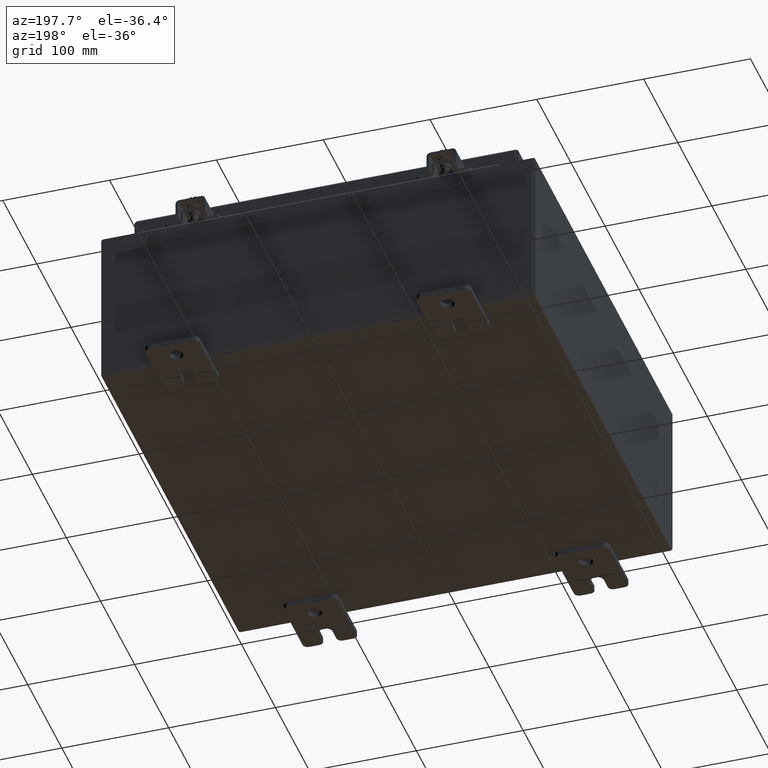
[diagram: clean part render]
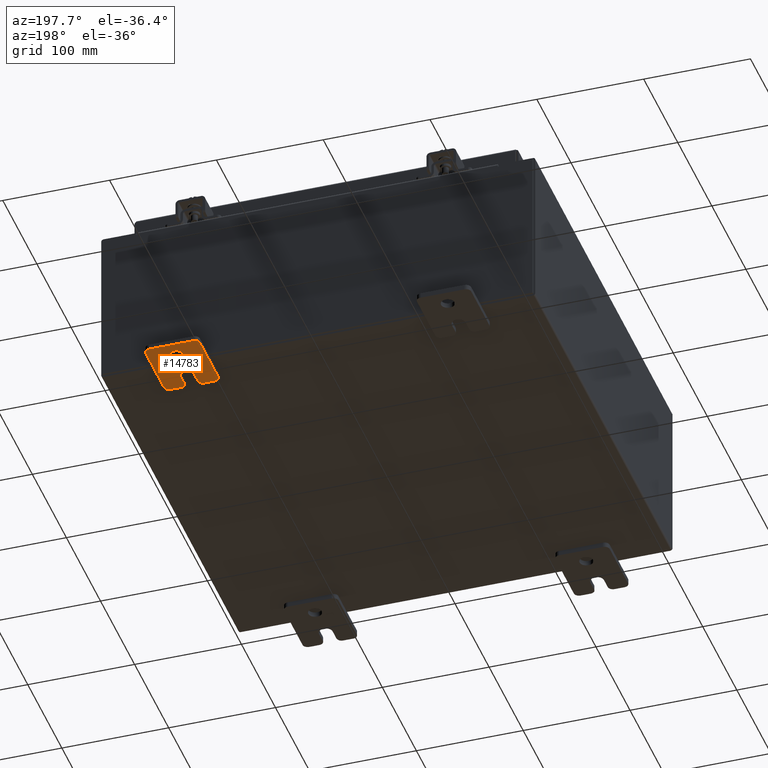
[diagram: same view with one face highlighted and labeled with its STEP entity id]
A machine part, auxiliary view. The second image highlights one B-rep face of the part: STEP entity #14783.
In plain terms, the highlighted planar face has unit normal (0, 0, 1).
Its self-contained STEP definition (entity closure, byte-faithful):
#406 = DIRECTION ( 'NONE',  ( 0.0000000000000000000, -1.639108796198553600E-015, -1.000000000000000000 ) ) ;
#421 = DIRECTION ( 'NONE',  ( 0.0000000000000000000, 7.189073667537492800E-016, -1.000000000000000000 ) ) ;
#816 = CARTESIAN_POINT ( 'NONE',  ( -0.1879999999999997800, 1.059999999999993600, -0.8100000000000089400 ) ) ;
#850 = CIRCLE ( 'NONE', #8610, 0.1900000000000011100 ) ;
#1102 = EDGE_CURVE ( 'NONE', #5170, #25850, #9318, .T. ) ;
#1103 = LINE ( 'NONE', #22632, #21917 ) ;
#1728 = EDGE_CURVE ( 'NONE', #12232, #4147, #6767, .T. ) ;
#1886 = DIRECTION ( 'NONE',  ( 1.000000000000000000, -0.0000000000000000000, -5.163192708025532000E-017 ) ) ;
#2190 = CIRCLE ( 'NONE', #13055, 0.1900000000000011100 ) ;
#2468 = CARTESIAN_POINT ( 'NONE',  ( -0.1879999999999997800, -1.060000000000003400, -0.4400000000000005000 ) ) ;
#2484 = CARTESIAN_POINT ( 'NONE',  ( -0.1879999999999997800, -1.250000000000005300, -0.8100000000000047200 ) ) ;
#2487 = EDGE_CURVE ( 'NONE', #9086, #5569, #17762, .T. ) ;
#2588 = CARTESIAN_POINT ( 'NONE',  ( -0.1879999999999997800, -1.060000000000004100, -0.8100000000000050500 ) ) ;
#2839 = DIRECTION ( 'NONE',  ( 0.0000000000000000000, 0.0000000000000000000, -1.000000000000000000 ) ) ;
#3097 = FACE_OUTER_BOUND ( 'NONE', #3208, .T. ) ;
#3195 = VERTEX_POINT ( 'NONE', #5436 ) ;
#3208 = EDGE_LOOP ( 'NONE', ( #17237, #12263, #5119, #7480, #10904, #20679, #19253, #10378, #22175, #8338, #25718, #19862, #16626, #8719 ) ) ;
#3513 = CARTESIAN_POINT ( 'NONE',  ( -0.1879999999999997800, 0.0000000000000000000, 0.0000000000000000000 ) ) ;
#3651 = CARTESIAN_POINT ( 'NONE',  ( -0.1880000000000010000, 0.6249999999999992200, 0.2499999999999999200 ) ) ;
#3973 = CARTESIAN_POINT ( 'NONE',  ( -0.1880000000000004700, -1.060000000000002100, 0.2500000000000005000 ) ) ;
#4147 = VERTEX_POINT ( 'NONE', #20369 ) ;
#4187 = EDGE_CURVE ( 'NONE', #7131, #10198, #11999, .T. ) ;
#4493 = DIRECTION ( 'NONE',  ( 0.0000000000000000000, 0.0000000000000000000, -1.000000000000000000 ) ) ;
#4586 = DIRECTION ( 'NONE',  ( 6.556435184794182400E-016, 1.000000000000000000, 0.0000000000000000000 ) ) ;
#4616 = DIRECTION ( 'NONE',  ( 0.0000000000000000000, 0.0000000000000000000, -1.000000000000000000 ) ) ;
#5119 = ORIENTED_EDGE ( 'NONE', *, *, #2487, .F. ) ;
#5144 = VECTOR ( 'NONE', #4586, 39.37007874015748100 ) ;
#5170 = VERTEX_POINT ( 'NONE', #26097 ) ;
#5436 = CARTESIAN_POINT ( 'NONE',  ( -0.1879999999999997800, -1.060000000000004500, -1.000000000000006400 ) ) ;
#5449 = DIRECTION ( 'NONE',  ( -1.000000000000000000, -0.0000000000000000000, 0.0000000000000000000 ) ) ;
#5528 = PLANE ( 'NONE',  #22796 ) ;
#5569 = VERTEX_POINT ( 'NONE', #11471 ) ;
#5693 = EDGE_CURVE ( 'NONE', #20489, #19932, #10635, .T. ) ;
#5898 = DIRECTION ( 'NONE',  ( 0.0000000000000000000, 1.000000000000000000, -1.639108796198558100E-015 ) ) ;
#6307 = CARTESIAN_POINT ( 'NONE',  ( -0.1879999999999997800, 1.249999999999994700, -0.8100000000000092700 ) ) ;
#6411 = VECTOR ( 'NONE', #25992, 39.37007874015748100 ) ;
#6767 = CIRCLE ( 'NONE', #8368, 0.2499999999999999200 ) ;
#6862 = EDGE_CURVE ( 'NONE', #9086, #24680, #850, .T. ) ;
#7131 = VERTEX_POINT ( 'NONE', #6307 ) ;
#7239 = CARTESIAN_POINT ( 'NONE',  ( -0.1880000000000001900, -0.6249999999999992200, 6.829619984160658000E-017 ) ) ;
#7284 = ORIENTED_EDGE ( 'NONE', *, *, #5693, .T. ) ;
#7480 = ORIENTED_EDGE ( 'NONE', *, *, #6862, .T. ) ;
#7544 = DIRECTION ( 'NONE',  ( -0.0000000000000000000, 0.0000000000000000000, -1.000000000000000000 ) ) ;
#8170 = CARTESIAN_POINT ( 'NONE',  ( -0.1879999999999997800, 1.249999999999997300, 0.8099999999999935000 ) ) ;
#8338 = ORIENTED_EDGE ( 'NONE', *, *, #22327, .T. ) ;
#8368 = AXIS2_PLACEMENT_3D ( 'NONE', #7239, #13040, #17829 ) ;
#8610 = AXIS2_PLACEMENT_3D ( 'NONE', #17510, #5449, #19553 ) ;
#8686 = VECTOR ( 'NONE', #406, 39.37007874015748100 ) ;
#8719 = ORIENTED_EDGE ( 'NONE', *, *, #25485, .T. ) ;
#9086 = VERTEX_POINT ( 'NONE', #14740 ) ;
#9318 = LINE ( 'NONE', #18561, #8686 ) ;
#9373 = DIRECTION ( 'NONE',  ( -1.000000000000000000, -0.0000000000000000000, 0.0000000000000000000 ) ) ;
#9545 = DIRECTION ( 'NONE',  ( 1.000000000000000000, -0.0000000000000000000, -5.163192708025532000E-017 ) ) ;
#9721 = ORIENTED_EDGE ( 'NONE', *, *, #17365, .T. ) ;
#9784 = VERTEX_POINT ( 'NONE', #18960 ) ;
#10198 = VERTEX_POINT ( 'NONE', #10459 ) ;
#10378 = ORIENTED_EDGE ( 'NONE', *, *, #10944, .T. ) ;
#10459 = CARTESIAN_POINT ( 'NONE',  ( -0.1879999999999997800, 1.059999999999993400, -1.000000000000010000 ) ) ;
#10530 = CIRCLE ( 'NONE', #16019, 0.2499999999999999200 ) ;
#10615 = CARTESIAN_POINT ( 'NONE',  ( -0.1880000000000001900, -0.6249999999999992200, 0.2500000000000005000 ) ) ;
#10635 = CIRCLE ( 'NONE', #24661, 0.2499999999999999200 ) ;
#10887 = CIRCLE ( 'NONE', #11392, 0.1900000000000011100 ) ;
#10904 = ORIENTED_EDGE ( 'NONE', *, *, #12224, .F. ) ;
#10944 = EDGE_CURVE ( 'NONE', #3195, #25850, #14052, .T. ) ;
#10953 = CARTESIAN_POINT ( 'NONE',  ( -0.1879999999999997800, 1.249999999999997600, 0.9999999999999951200 ) ) ;
#10996 = CARTESIAN_POINT ( 'NONE',  ( -0.1879999999999997800, -1.250000000000002400, 0.8099999999999980500 ) ) ;
#11146 = LINE ( 'NONE', #18519, #15888 ) ;
#11377 = VERTEX_POINT ( 'NONE', #14090 ) ;
#11392 = AXIS2_PLACEMENT_3D ( 'NONE', #2468, #16542, #4493 ) ;
#11471 = CARTESIAN_POINT ( 'NONE',  ( -0.1879999999999997800, -1.060000000000001200, 0.9999999999999988900 ) ) ;
#11592 = DIRECTION ( 'NONE',  ( 0.0000000000000000000, -1.639108796198553600E-015, -1.000000000000000000 ) ) ;
#11663 = VERTEX_POINT ( 'NONE', #10996 ) ;
#11971 = VECTOR ( 'NONE', #11592, 39.37007874015748100 ) ;
#11999 = CIRCLE ( 'NONE', #14972, 0.1900000000000011100 ) ;
#12008 = EDGE_CURVE ( 'NONE', #3195, #10198, #12127, .T. ) ;
#12127 = LINE ( 'NONE', #23998, #16845 ) ;
#12224 = EDGE_CURVE ( 'NONE', #7131, #24680, #1103, .T. ) ;
#12232 = VERTEX_POINT ( 'NONE', #10615 ) ;
#12263 = ORIENTED_EDGE ( 'NONE', *, *, #20691, .T. ) ;
#12471 = DIRECTION ( 'NONE',  ( -1.000000000000000000, -0.0000000000000000000, 0.0000000000000000000 ) ) ;
#13040 = DIRECTION ( 'NONE',  ( -1.000000000000000000, 6.523827964459549700E-016, 5.163192708025532000E-017 ) ) ;
#13055 = AXIS2_PLACEMENT_3D ( 'NONE', #24584, #12471, #421 ) ;
#13480 = EDGE_LOOP ( 'NONE', ( #7284, #9721 ) ) ;
#13914 = CARTESIAN_POINT ( 'NONE',  ( -0.1880000000000010000, 0.6249999999999992200, -7.703811342100550500E-020 ) ) ;
#14052 = CIRCLE ( 'NONE', #20021, 0.1900000000000011100 ) ;
#14071 = EDGE_CURVE ( 'NONE', #18108, #12232, #15209, .T. ) ;
#14090 = CARTESIAN_POINT ( 'NONE',  ( -0.1879999999999997800, -1.250000000000003100, 0.4400000000000020000 ) ) ;
#14740 = CARTESIAN_POINT ( 'NONE',  ( -0.1879999999999997800, 1.059999999999996500, 0.9999999999999953400 ) ) ;
#14783 = ADVANCED_FACE ( 'NONE', ( #18514, #3097 ), #5528, .F. ) ;
#14879 = DIRECTION ( 'NONE',  ( -1.000000000000000000, -0.0000000000000000000, 0.0000000000000000000 ) ) ;
#14972 = AXIS2_PLACEMENT_3D ( 'NONE', #816, #14879, #2839 ) ;
#15209 = LINE ( 'NONE', #18668, #5144 ) ;
#15564 = CARTESIAN_POINT ( 'NONE',  ( -0.1879999999999997800, -1.250000000000002200, 0.9999999999999992200 ) ) ;
#15888 = VECTOR ( 'NONE', #20548, 39.37007874015748100 ) ;
#15960 = DIRECTION ( 'NONE',  ( 0.0000000000000000000, 0.0000000000000000000, -1.000000000000000000 ) ) ;
#16019 = AXIS2_PLACEMENT_3D ( 'NONE', #21628, #9545, #23657 ) ;
#16542 = DIRECTION ( 'NONE',  ( -1.000000000000000000, -0.0000000000000000000, 0.0000000000000000000 ) ) ;
#16626 = ORIENTED_EDGE ( 'NONE', *, *, #14071, .F. ) ;
#16660 = DIRECTION ( 'NONE',  ( -1.000000000000000000, -0.0000000000000000000, 0.0000000000000000000 ) ) ;
#16845 = VECTOR ( 'NONE', #5898, 39.37007874015748100 ) ;
#17237 = ORIENTED_EDGE ( 'NONE', *, *, #20437, .F. ) ;
#17365 = EDGE_CURVE ( 'NONE', #19932, #20489, #10530, .T. ) ;
#17510 = CARTESIAN_POINT ( 'NONE',  ( -0.1879999999999997800, 1.059999999999996300, 0.8099999999999938400 ) ) ;
#17762 = LINE ( 'NONE', #10953, #6411 ) ;
#17829 = DIRECTION ( 'NONE',  ( -6.829619984160660000E-016, -1.000000000000000000, 0.0000000000000000000 ) ) ;
#17964 = LINE ( 'NONE', #15564, #11971 ) ;
#18108 = VERTEX_POINT ( 'NONE', #3973 ) ;
#18514 = FACE_BOUND ( 'NONE', #13480, .T. ) ;
#18519 = CARTESIAN_POINT ( 'NONE',  ( -0.1880000000000001900, -0.6249999999999992200, -0.2499999999999993900 ) ) ;
#18561 = CARTESIAN_POINT ( 'NONE',  ( -0.1879999999999997800, -1.250000000000002200, 0.9999999999999992200 ) ) ;
#18649 = DIRECTION ( 'NONE',  ( 0.0000000000000000000, 1.639108796198553600E-015, 1.000000000000000000 ) ) ;
#18668 = CARTESIAN_POINT ( 'NONE',  ( -0.1880000000000005800, -1.250000000000003800, 0.2500000000000005000 ) ) ;
#18960 = CARTESIAN_POINT ( 'NONE',  ( -0.1880000000000004700, -1.060000000000003400, -0.2499999999999994400 ) ) ;
#19253 = ORIENTED_EDGE ( 'NONE', *, *, #12008, .F. ) ;
#19553 = DIRECTION ( 'NONE',  ( 0.0000000000000000000, 0.0000000000000000000, -1.000000000000000000 ) ) ;
#19638 = DIRECTION ( 'NONE',  ( 1.000000000000000000, 0.0000000000000000000, -0.0000000000000000000 ) ) ;
#19862 = ORIENTED_EDGE ( 'NONE', *, *, #1728, .F. ) ;
#19932 = VERTEX_POINT ( 'NONE', #3651 ) ;
#20021 = AXIS2_PLACEMENT_3D ( 'NONE', #2588, #16660, #4616 ) ;
#20369 = CARTESIAN_POINT ( 'NONE',  ( -0.1880000000000001900, -0.6249999999999992200, -0.2499999999999998600 ) ) ;
#20437 = EDGE_CURVE ( 'NONE', #11663, #11377, #17964, .T. ) ;
#20489 = VERTEX_POINT ( 'NONE', #21856 ) ;
#20548 = DIRECTION ( 'NONE',  ( -6.556435184794182400E-016, -1.000000000000000000, -1.639108796198545600E-016 ) ) ;
#20679 = ORIENTED_EDGE ( 'NONE', *, *, #4187, .T. ) ;
#20691 = EDGE_CURVE ( 'NONE', #11663, #5569, #2190, .T. ) ;
#21460 = CARTESIAN_POINT ( 'NONE',  ( -0.1879999999999997800, -1.060000000000002100, 0.4400000000000016700 ) ) ;
#21628 = CARTESIAN_POINT ( 'NONE',  ( -0.1880000000000010000, 0.6249999999999992200, -7.703811342100550500E-020 ) ) ;
#21856 = CARTESIAN_POINT ( 'NONE',  ( -0.1880000000000010000, 0.6249999999999992200, -0.2499999999999999200 ) ) ;
#21917 = VECTOR ( 'NONE', #18649, 39.37007874015748100 ) ;
#22125 = AXIS2_PLACEMENT_3D ( 'NONE', #21460, #9373, #23493 ) ;
#22175 = ORIENTED_EDGE ( 'NONE', *, *, #1102, .F. ) ;
#22327 = EDGE_CURVE ( 'NONE', #5170, #9784, #10887, .T. ) ;
#22632 = CARTESIAN_POINT ( 'NONE',  ( -0.1879999999999997800, 1.249999999999994200, -1.000000000000010400 ) ) ;
#22796 = AXIS2_PLACEMENT_3D ( 'NONE', #3513, #19638, #7544 ) ;
#23493 = DIRECTION ( 'NONE',  ( 0.0000000000000000000, 0.0000000000000000000, -1.000000000000000000 ) ) ;
#23616 = EDGE_CURVE ( 'NONE', #4147, #9784, #11146, .T. ) ;
#23657 = DIRECTION ( 'NONE',  ( 0.0000000000000000000, 0.0000000000000000000, -1.000000000000000000 ) ) ;
#23998 = CARTESIAN_POINT ( 'NONE',  ( -0.1879999999999997800, -1.250000000000005600, -1.000000000000006200 ) ) ;
#24584 = CARTESIAN_POINT ( 'NONE',  ( -0.1879999999999997800, -1.060000000000001600, 0.8099999999999978300 ) ) ;
#24661 = AXIS2_PLACEMENT_3D ( 'NONE', #13914, #1886, #15960 ) ;
#24680 = VERTEX_POINT ( 'NONE', #8170 ) ;
#25485 = EDGE_CURVE ( 'NONE', #18108, #11377, #25634, .T. ) ;
#25634 = CIRCLE ( 'NONE', #22125, 0.1900000000000011400 ) ;
#25718 = ORIENTED_EDGE ( 'NONE', *, *, #23616, .F. ) ;
#25850 = VERTEX_POINT ( 'NONE', #2484 ) ;
#25992 = DIRECTION ( 'NONE',  ( 0.0000000000000000000, -1.000000000000000000, 1.639108796198558100E-015 ) ) ;
#26097 = CARTESIAN_POINT ( 'NONE',  ( -0.1879999999999997800, -1.250000000000004700, -0.4400000000000002200 ) ) ;